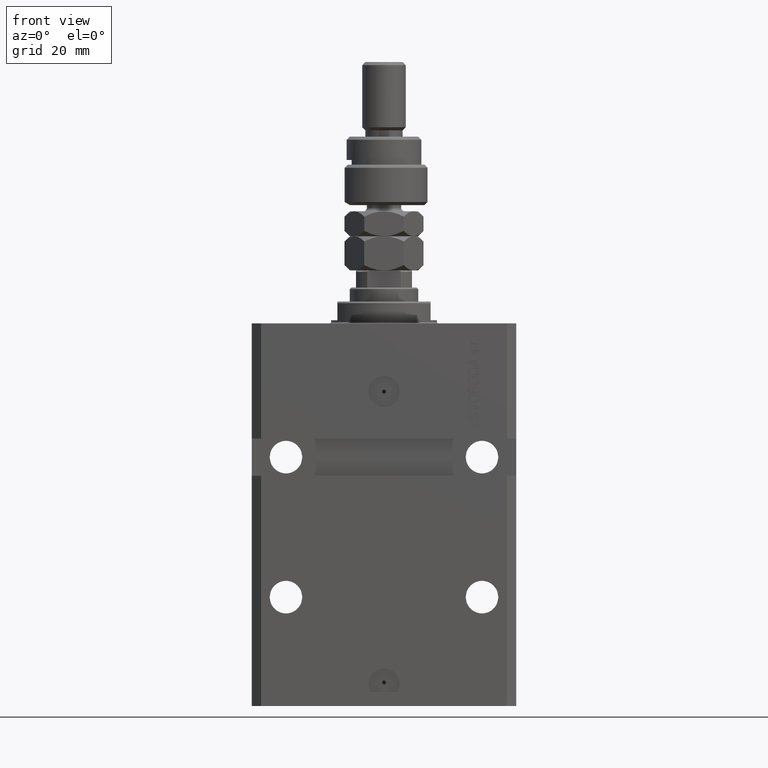
[diagram: clean part render]
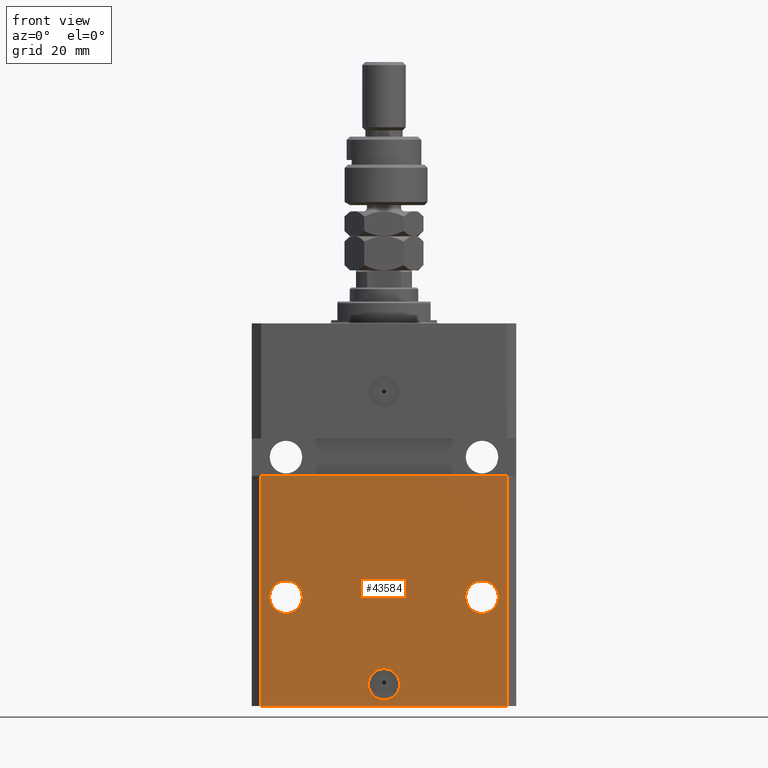
[diagram: same view with one face highlighted and labeled with its STEP entity id]
A machine part, front view. The second image highlights one B-rep face of the part: STEP entity #43584.
In plain terms, the highlighted planar face has unit normal (0, -1, 0).
Its self-contained STEP definition (entity closure, byte-faithful):
#263 = CARTESIAN_POINT ( 'NONE',  ( -42.50000000000000000, -31.50000000000000711, -48.99999999999999289 ) ) ;
#432 = CARTESIAN_POINT ( 'NONE',  ( 36.75000000000001421, -31.49999999999999289, -88.00000000000000000 ) ) ;
#533 = CARTESIAN_POINT ( 'NONE',  ( -39.50000000000000711, -31.50000000000000000, -123.0000000000000000 ) ) ;
#1452 = CIRCLE ( 'NONE', #30247, 5.249999999999997335 ) ;
#1589 = EDGE_CURVE ( 'NONE', #37328, #48929, #50750, .T. ) ;
#1672 = CARTESIAN_POINT ( 'NONE',  ( 39.50000000000000711, -31.50000000000000000, -123.0000000000000000 ) ) ;
#1723 = DIRECTION ( 'NONE',  ( 1.000000000000000000, 0.000000000000000000, 0.000000000000000000 ) ) ;
#2443 = DIRECTION ( 'NONE',  ( 1.000000000000000000, 0.000000000000000000, 0.000000000000000000 ) ) ;
#2531 = VERTEX_POINT ( 'NONE', #25747 ) ;
#2784 = DIRECTION ( 'NONE',  ( -1.000000000000000000, 0.000000000000000000, 0.000000000000000000 ) ) ;
#3603 = DIRECTION ( 'NONE',  ( 1.176083712526788232E-16, -1.000000000000000000, 0.000000000000000000 ) ) ;
#3746 = ORIENTED_EDGE ( 'NONE', *, *, #5751, .F. ) ;
#3833 = ORIENTED_EDGE ( 'NONE', *, *, #14041, .T. ) ;
#4079 = DIRECTION ( 'NONE',  ( 1.176083712526788232E-16, -1.000000000000000000, 0.000000000000000000 ) ) ;
#5553 = DIRECTION ( 'NONE',  ( 0.000000000000000000, 0.000000000000000000, 1.000000000000000000 ) ) ;
#5751 = EDGE_CURVE ( 'NONE', #10919, #13274, #23389, .T. ) ;
#7724 = EDGE_LOOP ( 'NONE', ( #30804, #13018 ) ) ;
#7880 = CARTESIAN_POINT ( 'NONE',  ( -39.50000000000000711, -31.50000000000000000, -123.0000000000000000 ) ) ;
#8781 = PLANE ( 'NONE',  #14896 ) ;
#9029 = FACE_BOUND ( 'NONE', #26259, .T. ) ;
#9632 = EDGE_CURVE ( 'NONE', #2531, #32043, #35155, .T. ) ;
#10919 = VERTEX_POINT ( 'NONE', #12731 ) ;
#12184 = VERTEX_POINT ( 'NONE', #30912 ) ;
#12731 = CARTESIAN_POINT ( 'NONE',  ( -5.000000000000006217, -31.50000000000000000, -115.9999999999999858 ) ) ;
#12900 = DIRECTION ( 'NONE',  ( 0.000000000000000000, -1.000000000000000000, 0.000000000000000000 ) ) ;
#13018 = ORIENTED_EDGE ( 'NONE', *, *, #28063, .F. ) ;
#13151 = DIRECTION ( 'NONE',  ( 0.000000000000000000, -0.000000000000000000, -1.000000000000000000 ) ) ;
#13209 = DIRECTION ( 'NONE',  ( -1.000000000000000000, 0.000000000000000000, 0.000000000000000000 ) ) ;
#13274 = VERTEX_POINT ( 'NONE', #30485 ) ;
#13738 = ORIENTED_EDGE ( 'NONE', *, *, #26440, .F. ) ;
#14041 = EDGE_CURVE ( 'NONE', #32043, #48929, #17378, .T. ) ;
#14129 = EDGE_CURVE ( 'NONE', #2531, #37328, #40038, .T. ) ;
#14149 = AXIS2_PLACEMENT_3D ( 'NONE', #26389, #26646, #2443 ) ;
#14428 = ORIENTED_EDGE ( 'NONE', *, *, #47157, .F. ) ;
#14482 = VECTOR ( 'NONE', #15611, 1000.000000000000000 ) ;
#14896 = AXIS2_PLACEMENT_3D ( 'NONE', #533, #12900, #13151 ) ;
#15211 = AXIS2_PLACEMENT_3D ( 'NONE', #16415, #4079, #23374 ) ;
#15611 = DIRECTION ( 'NONE',  ( 1.000000000000000000, 0.000000000000000000, 0.000000000000000000 ) ) ;
#16101 = ORIENTED_EDGE ( 'NONE', *, *, #16872, .F. ) ;
#16415 = CARTESIAN_POINT ( 'NONE',  ( 0.000000000000000000, -31.50000000000000000, -115.9999999999999858 ) ) ;
#16872 = EDGE_CURVE ( 'NONE', #34032, #12184, #1452, .T. ) ;
#17378 = LINE ( 'NONE', #1672, #23562 ) ;
#17975 = DIRECTION ( 'NONE',  ( 1.176083712526788232E-16, -1.000000000000000000, 0.000000000000000000 ) ) ;
#20588 = FACE_OUTER_BOUND ( 'NONE', #47339, .T. ) ;
#21420 = CARTESIAN_POINT ( 'NONE',  ( -31.50000000000001421, -31.50000000000000711, -88.00000000000000000 ) ) ;
#21572 = CIRCLE ( 'NONE', #34714, 5.249999999999997335 ) ;
#22092 = CARTESIAN_POINT ( 'NONE',  ( -31.50000000000001421, -31.50000000000000711, -88.00000000000000000 ) ) ;
#23374 = DIRECTION ( 'NONE',  ( 1.000000000000000000, 0.000000000000000000, 0.000000000000000000 ) ) ;
#23389 = CIRCLE ( 'NONE', #15211, 5.000000000000006217 ) ;
#23562 = VECTOR ( 'NONE', #5553, 1000.000000000000000 ) ;
#24147 = CARTESIAN_POINT ( 'NONE',  ( 39.50000000000000711, -31.50000000000000000, -123.0000000000000000 ) ) ;
#24826 = CIRCLE ( 'NONE', #14149, 5.000000000000006217 ) ;
#24949 = EDGE_CURVE ( 'NONE', #38501, #46859, #31412, .T. ) ;
#24985 = FACE_BOUND ( 'NONE', #25681, .T. ) ;
#25681 = EDGE_LOOP ( 'NONE', ( #14428, #3746 ) ) ;
#25747 = CARTESIAN_POINT ( 'NONE',  ( -39.50000000000000711, -31.50000000000000000, -123.0000000000000000 ) ) ;
#26259 = EDGE_LOOP ( 'NONE', ( #16101, #13738 ) ) ;
#26389 = CARTESIAN_POINT ( 'NONE',  ( 0.000000000000000000, -31.50000000000000000, -115.9999999999999858 ) ) ;
#26440 = EDGE_CURVE ( 'NONE', #12184, #34032, #21572, .T. ) ;
#26646 = DIRECTION ( 'NONE',  ( 1.176083712526788232E-16, -1.000000000000000000, 0.000000000000000000 ) ) ;
#28063 = EDGE_CURVE ( 'NONE', #46859, #38501, #33991, .T. ) ;
#30247 = AXIS2_PLACEMENT_3D ( 'NONE', #43227, #3603, #50725 ) ;
#30485 = CARTESIAN_POINT ( 'NONE',  ( 5.000000000000006217, -31.50000000000000000, -115.9999999999999858 ) ) ;
#30804 = ORIENTED_EDGE ( 'NONE', *, *, #24949, .F. ) ;
#30912 = CARTESIAN_POINT ( 'NONE',  ( 26.25000000000001776, -31.49999999999999289, -88.00000000000000000 ) ) ;
#30923 = DIRECTION ( 'NONE',  ( 1.000000000000000000, 1.632680918566406300E-16, 1.632680918566406300E-16 ) ) ;
#30946 = ORIENTED_EDGE ( 'NONE', *, *, #14129, .F. ) ;
#31412 = CIRCLE ( 'NONE', #42102, 5.249999999999997335 ) ;
#32043 = VERTEX_POINT ( 'NONE', #24147 ) ;
#33991 = CIRCLE ( 'NONE', #49635, 5.249999999999997335 ) ;
#34032 = VERTEX_POINT ( 'NONE', #432 ) ;
#34714 = AXIS2_PLACEMENT_3D ( 'NONE', #41100, #48861, #1723 ) ;
#35155 = LINE ( 'NONE', #7880, #14482 ) ;
#35223 = ORIENTED_EDGE ( 'NONE', *, *, #1589, .F. ) ;
#35533 = FACE_BOUND ( 'NONE', #7724, .T. ) ;
#36360 = CARTESIAN_POINT ( 'NONE',  ( 39.50000000000001421, -31.49999999999999289, -48.99999999999997868 ) ) ;
#36618 = DIRECTION ( 'NONE',  ( 1.176083712526788232E-16, -1.000000000000000000, 0.000000000000000000 ) ) ;
#36756 = CARTESIAN_POINT ( 'NONE',  ( -36.75000000000001421, -31.50000000000000711, -88.00000000000000000 ) ) ;
#36935 = CARTESIAN_POINT ( 'NONE',  ( -39.50000000000000711, -31.50000000000000000, -123.0000000000000000 ) ) ;
#37328 = VERTEX_POINT ( 'NONE', #40426 ) ;
#37572 = VECTOR ( 'NONE', #40538, 1000.000000000000000 ) ;
#38501 = VERTEX_POINT ( 'NONE', #39116 ) ;
#39116 = CARTESIAN_POINT ( 'NONE',  ( -26.25000000000001776, -31.50000000000000711, -88.00000000000000000 ) ) ;
#40038 = LINE ( 'NONE', #36935, #37572 ) ;
#40426 = CARTESIAN_POINT ( 'NONE',  ( -39.50000000000000000, -31.50000000000000711, -48.99999999999999289 ) ) ;
#40538 = DIRECTION ( 'NONE',  ( 0.000000000000000000, 0.000000000000000000, 1.000000000000000000 ) ) ;
#41100 = CARTESIAN_POINT ( 'NONE',  ( 31.50000000000001421, -31.49999999999999289, -88.00000000000000000 ) ) ;
#42102 = AXIS2_PLACEMENT_3D ( 'NONE', #22092, #17975, #2784 ) ;
#43227 = CARTESIAN_POINT ( 'NONE',  ( 31.50000000000001421, -31.49999999999999289, -88.00000000000000000 ) ) ;
#43584 = ADVANCED_FACE ( 'NONE', ( #24985, #9029, #35533, #20588 ), #8781, .T. ) ;
#46859 = VERTEX_POINT ( 'NONE', #36756 ) ;
#47157 = EDGE_CURVE ( 'NONE', #13274, #10919, #24826, .T. ) ;
#47339 = EDGE_LOOP ( 'NONE', ( #35223, #30946, #49882, #3833 ) ) ;
#48861 = DIRECTION ( 'NONE',  ( 1.176083712526788232E-16, -1.000000000000000000, 0.000000000000000000 ) ) ;
#48929 = VERTEX_POINT ( 'NONE', #36360 ) ;
#49586 = VECTOR ( 'NONE', #30923, 1000.000000000000000 ) ;
#49635 = AXIS2_PLACEMENT_3D ( 'NONE', #21420, #36618, #13209 ) ;
#49882 = ORIENTED_EDGE ( 'NONE', *, *, #9632, .T. ) ;
#50725 = DIRECTION ( 'NONE',  ( 1.000000000000000000, 0.000000000000000000, 0.000000000000000000 ) ) ;
#50750 = LINE ( 'NONE', #263, #49586 ) ;